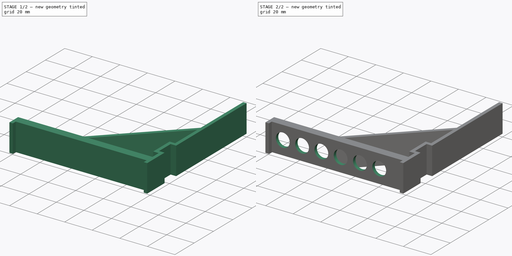
[diagram: build sequence overview — one tinted view per stage of 2, left to right]
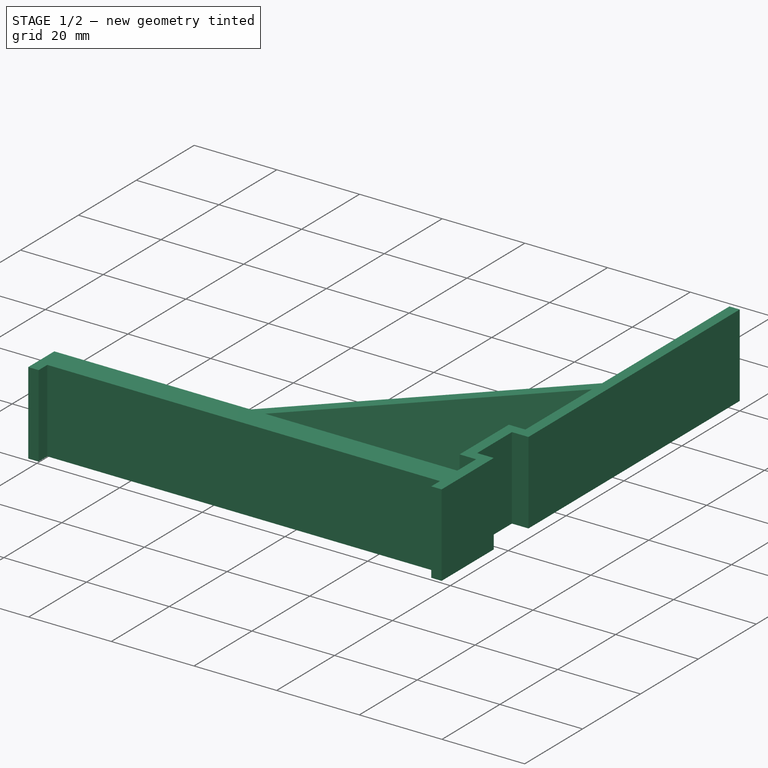
[diagram: stage 1 of 2 — iso view after this stage's code; geometry added in this stage tinted green]
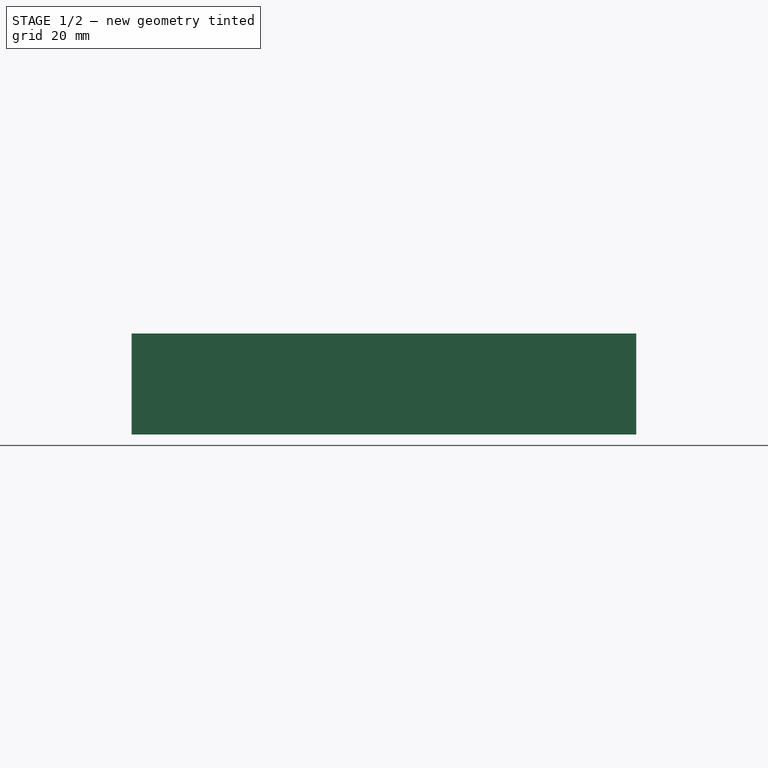
[diagram: stage 1 of 2 — front view after this stage's code; geometry added in this stage tinted green]
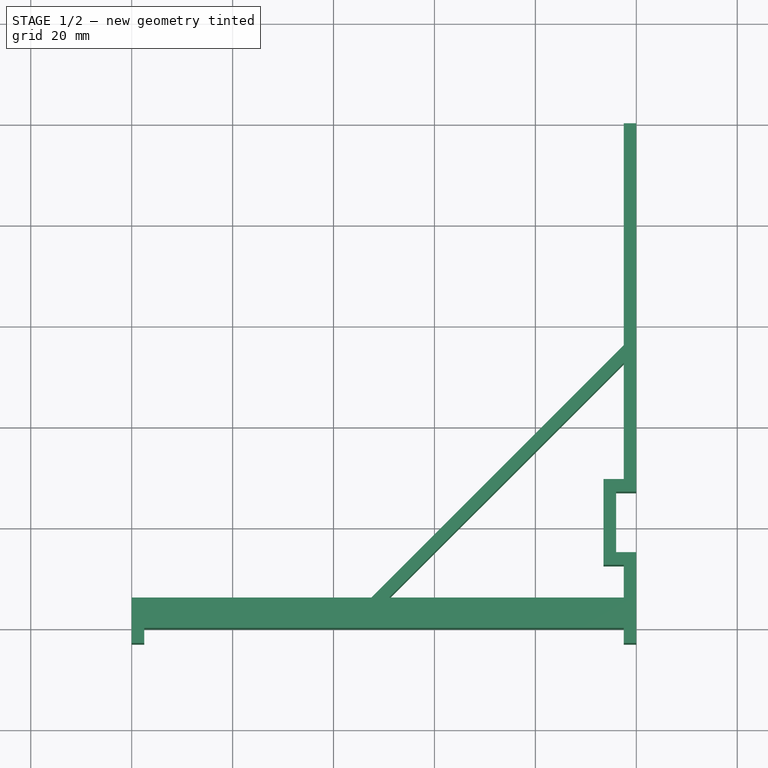
[diagram: stage 1 of 2 — top view after this stage's code; geometry added in this stage tinted green]
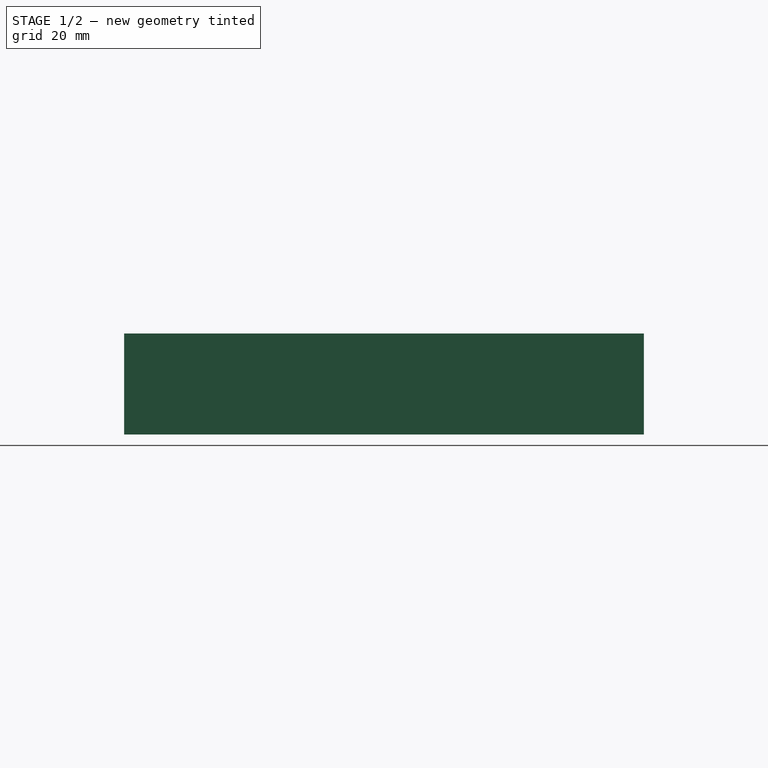
[diagram: stage 1 of 2 — right view after this stage's code; geometry added in this stage tinted green]
FCSTD DOCUMENT  (FreeCAD 0.20R29603 (Git))
Label: sliding door oiler mount
License: All rights reserved
LicenseURL: http://en.wikipedia.org/wiki/All_rights_reserved
objects: Sketcher::SketchObject×3, PartDesign::Pad×2, PartDesign::Pocket×1, PartDesign::LinearPattern×1, PartDesign::Body×1
note: 11 computed .brp shape members not serialized (recipe doc carries the construction recipe); baked Part::Feature solids carry a one-line shape summary decoded from their .brp

FEATURE [Sketcher::SketchObject] Sketch
  FullyConstrained = true
  MapMode = 5
  Support = -> [XY_Plane]
  sketch-geometry (25):
    g0: LineSegment StartX=0 StartY=100 StartZ=0 EndX=0 EndY=27 EndZ=0
    g1: LineSegment StartX=-100 StartY=2.5 StartZ=0 EndX=-100 EndY=-3 EndZ=0
    g2: LineSegment StartX=0 StartY=27 StartZ=0 EndX=-4 EndY=27 EndZ=0
    g3: LineSegment StartX=-2.5 StartY=100 StartZ=0 EndX=0 EndY=100 EndZ=0
    g4: LineSegment StartX=-100 StartY=2.5 StartZ=0 EndX=-56.0355 EndY=2.5 EndZ=0
    g5: LineSegment StartX=-56.0355 StartY=2.5 StartZ=0 EndX=-2.5 EndY=56.0355 EndZ=0
    g6: LineSegment StartX=-2.5 StartY=56.0355 StartZ=0 EndX=-2.5 EndY=100 EndZ=0
    g7: LineSegment StartX=-52.5 StartY=2.5 StartZ=0 EndX=-2.5 EndY=2.5 EndZ=0
    g8: LineSegment StartX=-4 StartY=27 StartZ=0 EndX=-4 EndY=15 EndZ=0
    g9: LineSegment StartX=-4 StartY=15 StartZ=0 EndX=0 EndY=15 EndZ=0
    g10: LineSegment StartX=0 StartY=15 StartZ=0 EndX=0 EndY=-3 EndZ=0
    g11: LineSegment StartX=-2.5 StartY=2.5 StartZ=0 EndX=-2.5 EndY=12.5 EndZ=0
    g12: LineSegment StartX=-2.5 StartY=12.5 StartZ=0 EndX=-6.5 EndY=12.5 EndZ=0
    g13: LineSegment StartX=-6.5 StartY=12.5 StartZ=0 EndX=-6.5 EndY=29.5 EndZ=0
    g14: LineSegment StartX=-6.5 StartY=29.5 StartZ=0 EndX=-2.5 EndY=29.5 EndZ=0
    g15: LineSegment StartX=-2.5 StartY=29.5 StartZ=0 EndX=-2.5 EndY=52.5 EndZ=0
    g16: LineSegment StartX=-6.5 StartY=29.5 StartZ=0 EndX=-4 EndY=27 EndZ=0
    g17: LineSegment StartX=-2.5 StartY=29.5 StartZ=0 EndX=0 EndY=27 EndZ=0
    g18: LineSegment StartX=-4 StartY=15 StartZ=0 EndX=-6.5 EndY=12.5 EndZ=0
    g19: LineSegment StartX=-2.5 StartY=52.5 StartZ=0 EndX=-52.5 EndY=2.5 EndZ=0
    g20: LineSegment StartX=-100 StartY=-3 StartZ=0 EndX=-97.5 EndY=-3 EndZ=0
    g21: LineSegment StartX=-97.5 StartY=-3 StartZ=0 EndX=-97.5 EndY=0 EndZ=0
    g22: LineSegment StartX=-97.5 StartY=0 StartZ=0 EndX=-2.5 EndY=0 EndZ=0
    g23: LineSegment StartX=-2.5 StartY=0 StartZ=0 EndX=-2.5 EndY=-3 EndZ=0
    g24: LineSegment StartX=-2.5 StartY=-3 StartZ=0 EndX=0 EndY=-3 EndZ=0
  constraints (72):
    c: PointOnObject(g0,g-2)
    c: Vertical(g1)
    c: Vertical(g0)
    c: Coincident(g0,g2)
    c: Horizontal(g2)
    c: Coincident(g3,g0)
    c: Horizontal(g3)
    c: DistanceY(g-1,g0) = 100
    c: DistanceX(g2,g2) = 4
    c: DistanceX(g1,g-1) = 100
    c: Coincident(g1,g4)
    c: Horizontal(g4)
    c: Coincident(g4,g5)
    c: Coincident(g5,g6)
    c: Coincident(g6,g3)
    c: Horizontal(g7)
    c: Horizontal(g7,g4)
    c: Vertical(g6)
    c: Coincident(g2,g8)
    c: Vertical(g8)
    c: Coincident(g8,g9)
    c: PointOnObject(g9,g-2)
    c: Horizontal(g9)
    c: Coincident(g9,g10)
    c: DistanceY(g8,g8) = 12
    c: Coincident(g7,g11)
    c: Vertical(g11)
    c: Coincident(g11,g12)
    c: Horizontal(g12)
    c: Coincident(g12,g13)
    c: Vertical(g13)
    c: Coincident(g13,g14)
    c: Horizontal(g14)
    c: Coincident(g14,g15)
    c: Vertical(g15)
    c: Coincident(g16,g13)
    c: Coincident(g16,g2)
    c: Angle(g16) = -0.785398
    c: Coincident(g17,g14)
    c: Coincident(g17,g0)
    c: Angle(g17) = -0.785398
    c: Coincident(g18,g8)
    c: Coincident(g18,g12)
    c: Angle(g12,g18) = 0.785398
    c: Coincident(g19,g15)
    c: Coincident(g19,g7)
    c: Distance(g7,g5) = 2.5
    c: Angle(g7,g19) = 0.785398
    c: Parallel(g19,g5)
    c: DistanceX(g7,g7) = 50
    c: DistanceX(g7,g-1) = 2.5
    c: Vertical(g15,g5)
    c: DistanceX(g3,g3) = 2.5
    c: Coincident(g20,g1)
    c: Horizontal(g20)
    c: Coincident(g20,g21)
    c: Vertical(g21)
    c: Coincident(g21,g22)
    c: PointOnObject(g22,g-1)
    c: Horizontal(g22)
    c: Coincident(g22,g23)
    c: Vertical(g23)
    c: Coincident(g23,g24)
    c: PointOnObject(g24,g-2)
    c: Horizontal(g24)
    c: Coincident(g10,g24)
    c: DistanceY(g-1,g9) = 15
    c: Vertical(g7,g22)
    c: DistanceY(g23,g23) = 3
    c: DistanceX(g20,g20) = 2.5
    c: Horizontal(g23,g20)
    c: DistanceY(g21,g1) = 2.5
FEATURE [PartDesign::Pad] Pad
  AlongSketchNormal = false
  Direction = (0,0,1)
  Length = 20
  Length2 = 100
  Profile = -> Sketch
  Type = 0
FEATURE [Sketcher::SketchObject] Sketch001
  ExternalGeometry = -> [Pad]
  FullyConstrained = false
  MapMode = 5
  Placement = pos=(0,0,0) rot=(1,0,0;1.5708rad)
  Support = -> [XZ_Plane]
  sketch-geometry (3):
    g0: Circle CenterX=-89.5 CenterY=10 CenterZ=0 NormalX=0 NormalY=0 NormalZ=1 AngleXU=0 Radius=5
    g1: GeomPoint X=-50 Y=10 Z=0
    g2: LineSegment StartX=-50 StartY=10 StartZ=0 EndX=-109.355 EndY=10 EndZ=0
  constraints (6):
    c: Diameter(g0) = 10
    c: Symmetric(g-5,g-6,g1)
    c: Coincident(g2,g1)
    c: Horizontal(g2)
    c: PointOnObject(g0,g2)
    c: DistanceX(g-5,g0) = 8
FEATURE [Sketcher::SketchObject] Sketch002
  FullyConstrained = false
  MapMode = 5
  Placement = pos=(0,0,0) rot=(1,0,0;1.5708rad)
  Support = -> [XZ_Plane]
  sketch-geometry (8):
    g0: LineSegment StartX=-100 StartY=20 StartZ=0 EndX=0 EndY=20 EndZ=0
    g1: LineSegment StartX=0 StartY=20 StartZ=0 EndX=0 EndY=0 EndZ=0
    g2: LineSegment StartX=0 StartY=0 StartZ=0 EndX=-100 EndY=0 EndZ=0
    g3: LineSegment StartX=-100 StartY=0 StartZ=0 EndX=-100 EndY=20 EndZ=0
    g4: LineSegment StartX=-98 StartY=18 StartZ=0 EndX=-2 EndY=18 EndZ=0
    g5: LineSegment StartX=-2 StartY=18 StartZ=0 EndX=-2 EndY=2 EndZ=0
    g6: LineSegment StartX=-2 StartY=2 StartZ=0 EndX=-98 EndY=2 EndZ=0
    g7: LineSegment StartX=-98 StartY=2 StartZ=0 EndX=-98 EndY=18 EndZ=0
  constraints (22):
    c: Coincident(g0,g1)
    c: Coincident(g1,g2)
    c: Coincident(g2,g3)
    c: Coincident(g3,g0)
    c: Horizontal(g0)
    c: Horizontal(g2)
    c: Vertical(g1)
    c: Vertical(g3)
    c: Coincident(g0,g-4)
    c: Coincident(g1,g-1)
    c: Coincident(g4,g5)
    c: Coincident(g5,g6)
    c: Coincident(g6,g7)
    c: Coincident(g7,g4)
    c: Horizontal(g4)
    c: Horizontal(g6)
    c: Vertical(g5)
    c: Vertical(g7)
    c: DistanceY(g4,g-4) = 2
    c: DistanceX(g-4,g4) = 2
    c: DistanceY(g-4,g6) = 2
    c: DistanceX(g4,g-3) = 2
FEATURE [PartDesign::Pad] Pad001
  AlongSketchNormal = false
  BaseFeature = -> Pad
  Direction = (0,-1,-2e-16)
  Length = 6
  Length2 = 100
  Profile = -> Sketch002
  Reversed = true
  Type = 0
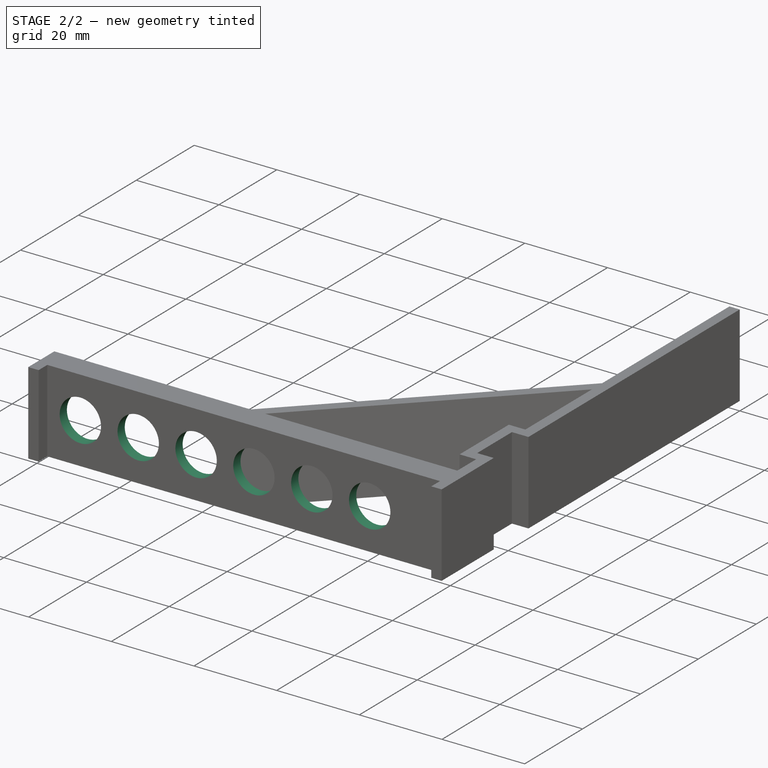
[diagram: stage 2 of 2 — iso view after this stage's code; geometry added in this stage tinted green]
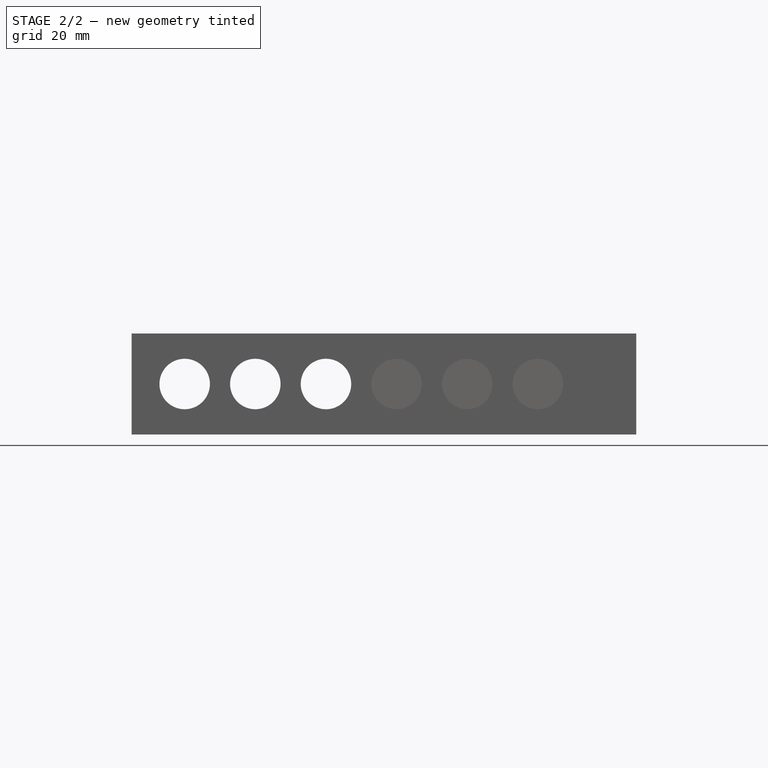
[diagram: stage 2 of 2 — front view after this stage's code; geometry added in this stage tinted green]
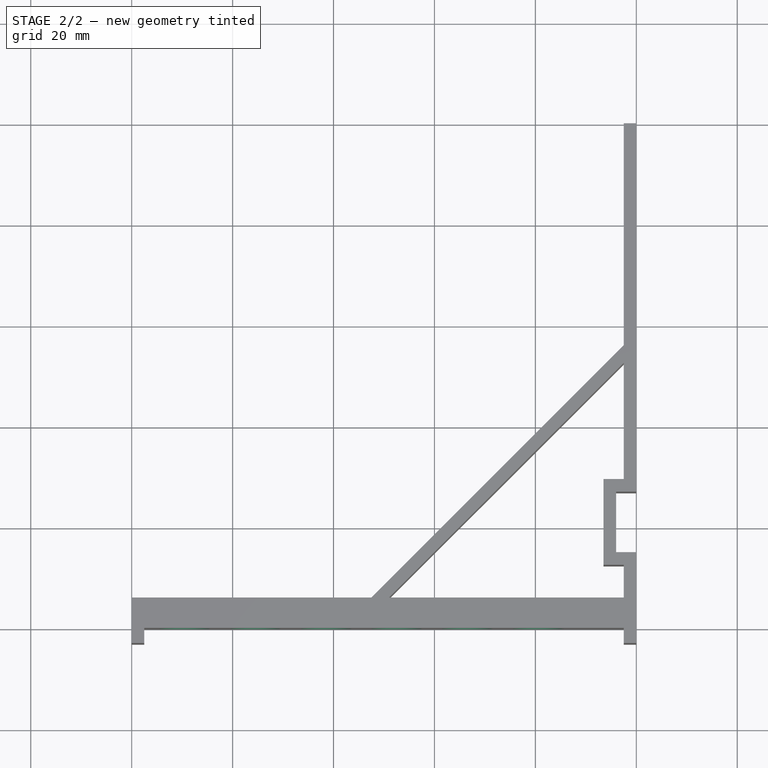
[diagram: stage 2 of 2 — top view after this stage's code; geometry added in this stage tinted green]
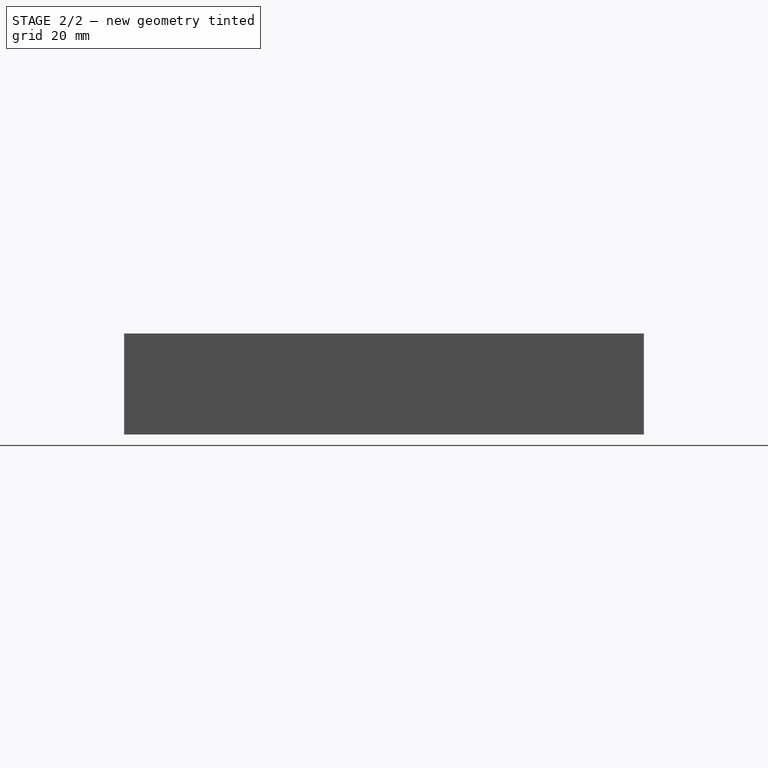
[diagram: stage 2 of 2 — right view after this stage's code; geometry added in this stage tinted green]
FEATURE [PartDesign::Pocket] Pocket
  BaseFeature = -> Pad001
  Direction = (0,1,2e-16)
  Length = 5
  Length2 = 5
  Profile = -> Sketch001
  ReferenceAxis = -> Sketch001 [N_Axis]
  Type = 2
FEATURE [PartDesign::LinearPattern] LinearPattern
  BaseFeature = -> Pocket
  Direction = -> Sketch001 [H_Axis]
  Length = 70
  Occurrences = 6
  Originals = -> [Pocket]
FEATURE [PartDesign::Body] Body
  Group = -> [Sketch,Pad,Sketch001,Sketch002,Pad001,Pocket,LinearPattern]
  Origin = -> Origin
  Tip = -> LinearPattern
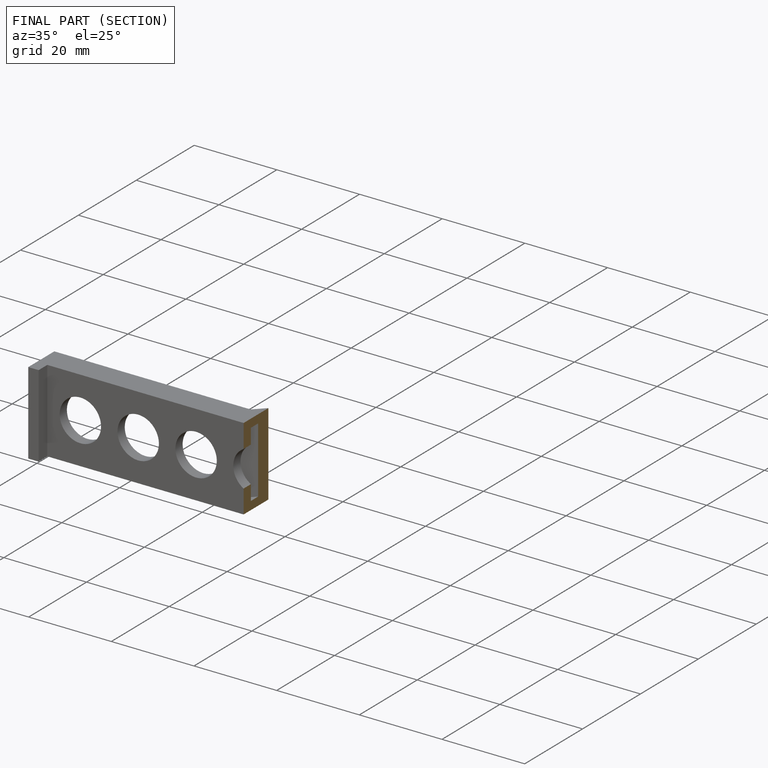
[diagram: finished part — half-section view (interior)]
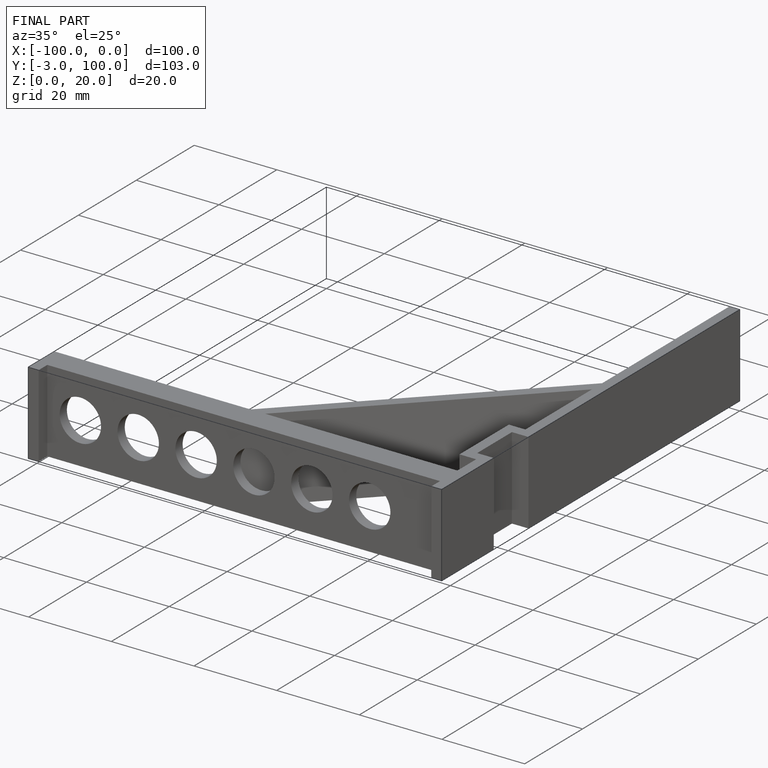
[diagram: finished part — iso view with bounding-box wireframe]
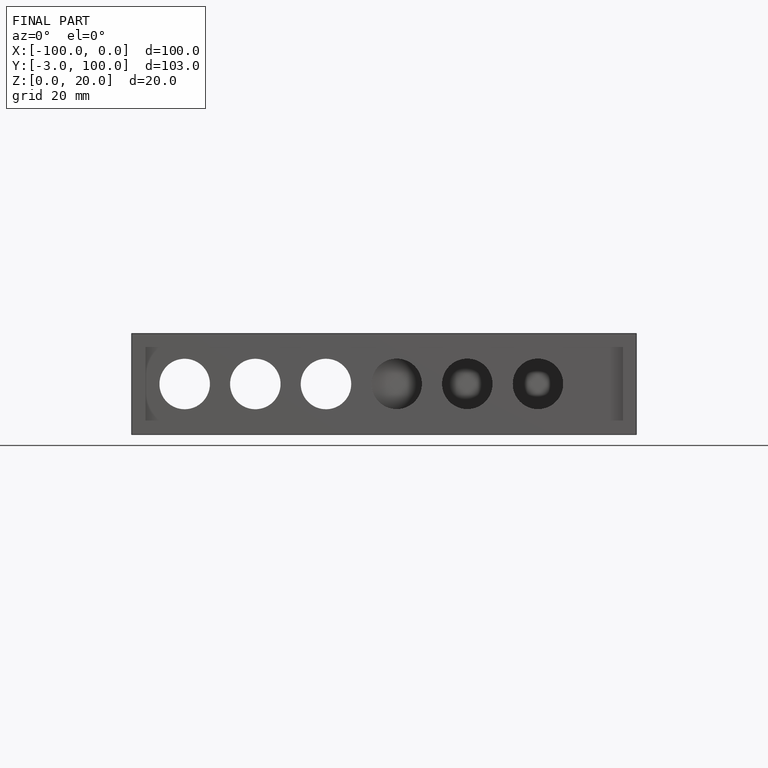
[diagram: finished part — front view with bounding-box wireframe]
